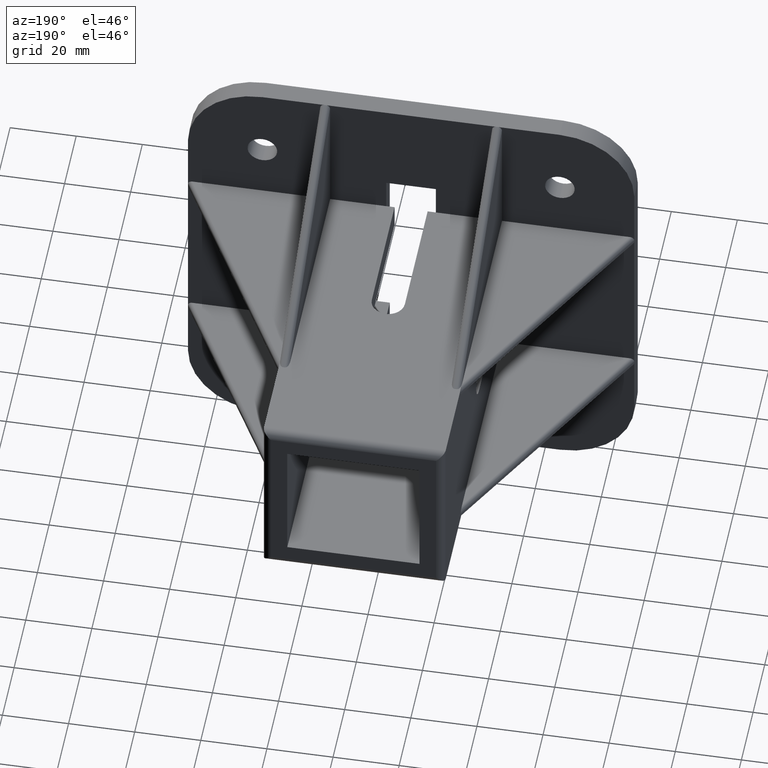
[diagram: clean part render]
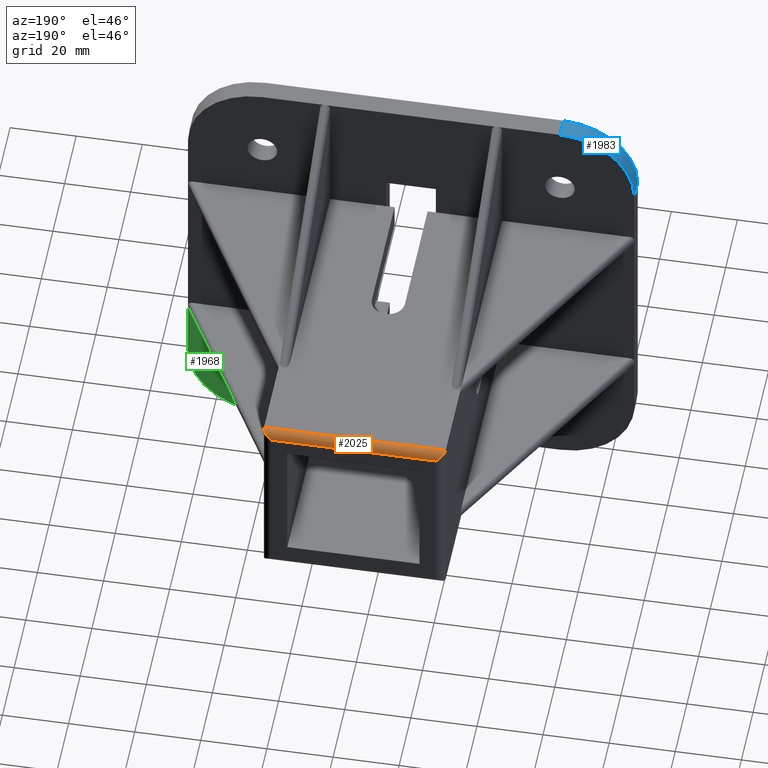
[diagram: same view with three faces highlighted in distinct colors, each labeled with its STEP entity id]
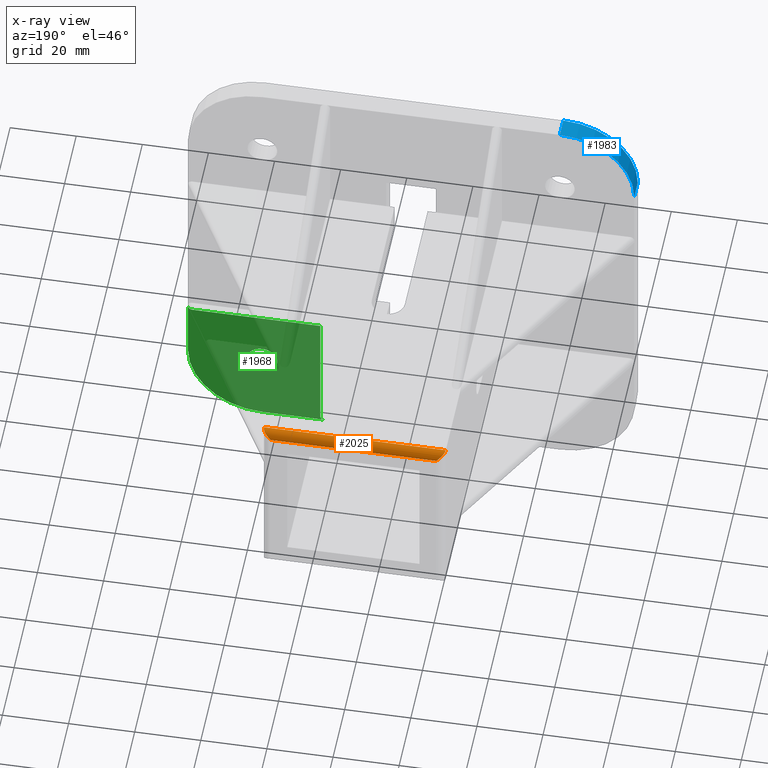
[diagram: x-ray of the same camera — body ghosted, the three highlighted faces saturated]
A machine part, auxiliary view with three faces highlighted in distinct colors.
The next image is the same camera in x-ray (body ghosted, the three faces saturated) — at least one of them is partly hidden behind the body in this view.
Their STEP definitions:

[orange] entity #2025 — the highlighted cylindrical surface (edge-blend (fillet) strip) has radius 2.5 mm, axis along (1, 0, 0).
#52=ELLIPSE('',#2190,3.53553390592985,2.49999999999807);
#53=ELLIPSE('',#2192,3.53553390593222,2.49999999999969);
#179=LINE('',#3112,#411);
#224=LINE('',#3222,#456);
#411=VECTOR('',#2471,55.);
#456=VECTOR('',#2574,50.);
#683=FACE_OUTER_BOUND('',#803,.T.);
#803=EDGE_LOOP('',(#1792,#1793,#1794,#1795));
#917=VERTEX_POINT('',#2921);
#992=VERTEX_POINT('',#3110);
#1027=VERTEX_POINT('',#3219);
#1028=VERTEX_POINT('',#3221);
#1202=EDGE_CURVE('',#992,#917,#179,.T.);
#1261=EDGE_CURVE('',#1027,#1028,#224,.T.);
#1306=EDGE_CURVE('',#1027,#917,#52,.T.);
#1307=EDGE_CURVE('',#992,#1028,#53,.T.);
#1792=ORIENTED_EDGE('',*,*,#1306,.T.);
#1793=ORIENTED_EDGE('',*,*,#1202,.F.);
#1794=ORIENTED_EDGE('',*,*,#1307,.T.);
#1795=ORIENTED_EDGE('',*,*,#1261,.F.);
#1943=CYLINDRICAL_SURFACE('',#2193,2.5);
#2025=ADVANCED_FACE('',(#683),#1943,.T.);
#2190=AXIS2_PLACEMENT_3D('',#3315,#2700,#2701);
#2192=AXIS2_PLACEMENT_3D('',#3317,#2704,#2705);
#2193=AXIS2_PLACEMENT_3D('',#3318,#2706,#2707);
#2471=DIRECTION('',(-1.,0.,0.));
#2574=DIRECTION('',(1.,0.,0.));
#2700=DIRECTION('center_axis',(0.70710678118655,-1.2802540303387E-14,0.707106781186545));
#2701=DIRECTION('ref_axis',(0.707106781186545,9.40506938673657E-13,-0.70710678118655));
#2704=DIRECTION('center_axis',(-0.707106781186548,0.,0.707106781186548));
#2705=DIRECTION('ref_axis',(0.707106781186547,-1.41874207443106E-13,0.707106781186547));
#2706=DIRECTION('center_axis',(1.,0.,0.));
#2707=DIRECTION('ref_axis',(0.,0.,-1.));
#2921=CARTESIAN_POINT('',(-27.5,102.5,27.5));
#3110=CARTESIAN_POINT('',(27.5,102.5,27.5));
#3112=CARTESIAN_POINT('',(27.5,102.5,27.5));
#3219=CARTESIAN_POINT('',(-25.,105.,25.));
#3221=CARTESIAN_POINT('',(25.,105.,25.));
#3222=CARTESIAN_POINT('',(27.5,105.,25.));
#3315=CARTESIAN_POINT('Origin',(-25.0000000000021,102.500000000002,25.000000000002));
#3317=CARTESIAN_POINT('Origin',(25.0000000000004,102.5,25.0000000000004));
#3318=CARTESIAN_POINT('Origin',(27.5,102.5,25.));

[blue] entity #1983 — the highlighted cylindrical surface (partial cylindrical patch) has radius 22.5 mm, axis along (0, -1, 0).
#200=LINE('',#3179,#432);
#206=LINE('',#3186,#438);
#432=VECTOR('',#2530,6.);
#438=VECTOR('',#2538,6.);
#641=FACE_OUTER_BOUND('',#760,.T.);
#760=EDGE_LOOP('',(#1616,#1617,#1618,#1619));
#841=CIRCLE('',#2070,22.5);
#851=CIRCLE('',#2122,22.5);
#866=VERTEX_POINT('',#2813);
#867=VERTEX_POINT('',#2815);
#996=VERTEX_POINT('',#3122);
#1000=VERTEX_POINT('',#3130);
#1050=EDGE_CURVE('',#866,#867,#841,.T.);
#1213=EDGE_CURVE('',#1000,#996,#851,.T.);
#1236=EDGE_CURVE('',#867,#1000,#200,.T.);
#1242=EDGE_CURVE('',#996,#866,#206,.T.);
#1616=ORIENTED_EDGE('',*,*,#1213,.F.);
#1617=ORIENTED_EDGE('',*,*,#1236,.F.);
#1618=ORIENTED_EDGE('',*,*,#1050,.F.);
#1619=ORIENTED_EDGE('',*,*,#1242,.F.);
#1921=CYLINDRICAL_SURFACE('',#2142,22.5);
#1983=ADVANCED_FACE('',(#641),#1921,.T.);
#2070=AXIS2_PLACEMENT_3D('',#2816,#2253,#2254);
#2122=AXIS2_PLACEMENT_3D('',#3132,#2488,#2489);
#2142=AXIS2_PLACEMENT_3D('',#3214,#2565,#2566);
#2253=DIRECTION('center_axis',(0.,-1.,0.));
#2254=DIRECTION('ref_axis',(0.,0.,-1.));
#2488=DIRECTION('center_axis',(0.,1.,0.));
#2489=DIRECTION('ref_axis',(9.25185853854297E-16,0.,-1.));
#2530=DIRECTION('',(0.,1.,0.));
#2538=DIRECTION('',(0.,-1.,0.));
#2565=DIRECTION('center_axis',(0.,-1.,0.));
#2566=DIRECTION('ref_axis',(0.,0.,-1.));
#2813=CARTESIAN_POINT('',(-45.,0.,67.5));
#2815=CARTESIAN_POINT('',(-67.5,0.,45.));
#2816=CARTESIAN_POINT('Origin',(-45.,0.,45.));
#3122=CARTESIAN_POINT('',(-45.,6.,67.5));
#3130=CARTESIAN_POINT('',(-67.5,6.,45.));
#3132=CARTESIAN_POINT('Origin',(-45.,6.,45.));
#3179=CARTESIAN_POINT('',(-67.5,6.,45.));
#3186=CARTESIAN_POINT('',(-45.,6.,67.5));
#3214=CARTESIAN_POINT('Origin',(-45.,6.,45.));

[green] entity #1968 — the highlighted planar face has unit normal (0, -1, 0).
#30=ELLIPSE('',#2106,1.37733517060514,1.19999999999934);
#31=ELLIPSE('',#2107,1.37733517060545,1.19999999999966);
#161=LINE('',#3062,#393);
#162=LINE('',#3066,#394);
#163=LINE('',#3069,#395);
#164=LINE('',#3073,#396);
#393=VECTOR('',#2429,38.6226648293941);
#394=VECTOR('',#2432,18.7);
#395=VECTOR('',#2435,38.6226648293941);
#396=VECTOR('',#2438,18.7);
#534=PLANE('',#2105);
#601=FACE_BOUND('',#742,.T.);
#626=FACE_OUTER_BOUND('',#741,.T.);
#741=EDGE_LOOP('',(#1492,#1493,#1494,#1495,#1496,#1497,#1498));
#742=EDGE_LOOP('',(#1499));
#836=CIRCLE('',#2063,4.5);
#849=CIRCLE('',#2108,22.5);
#860=VERTEX_POINT('',#2800);
#971=VERTEX_POINT('',#3058);
#972=VERTEX_POINT('',#3060);
#973=VERTEX_POINT('',#3064);
#974=VERTEX_POINT('',#3065);
#975=VERTEX_POINT('',#3067);
#976=VERTEX_POINT('',#3070);
#977=VERTEX_POINT('',#3072);
#1044=EDGE_CURVE('',#860,#860,#836,.T.);
#1176=EDGE_CURVE('',#972,#971,#161,.T.);
#1177=EDGE_CURVE('',#973,#974,#162,.T.);
#1178=EDGE_CURVE('',#974,#975,#30,.T.);
#1179=EDGE_CURVE('',#975,#971,#163,.T.);
#1180=EDGE_CURVE('',#972,#976,#31,.T.);
#1181=EDGE_CURVE('',#976,#977,#164,.T.);
#1182=EDGE_CURVE('',#977,#973,#849,.T.);
#1492=ORIENTED_EDGE('',*,*,#1177,.T.);
#1493=ORIENTED_EDGE('',*,*,#1178,.T.);
#1494=ORIENTED_EDGE('',*,*,#1179,.T.);
#1495=ORIENTED_EDGE('',*,*,#1176,.F.);
#1496=ORIENTED_EDGE('',*,*,#1180,.T.);
#1497=ORIENTED_EDGE('',*,*,#1181,.T.);
#1498=ORIENTED_EDGE('',*,*,#1182,.T.);
#1499=ORIENTED_EDGE('',*,*,#1044,.F.);
#1968=ADVANCED_FACE('',(#626,#601),#534,.F.);
#2063=AXIS2_PLACEMENT_3D('',#2801,#2238,#2239);
#2105=AXIS2_PLACEMENT_3D('',#3063,#2430,#2431);
#2106=AXIS2_PLACEMENT_3D('',#3068,#2433,#2434);
#2107=AXIS2_PLACEMENT_3D('',#3071,#2436,#2437);
#2108=AXIS2_PLACEMENT_3D('',#3074,#2439,#2440);
#2238=DIRECTION('center_axis',(0.,1.,0.));
#2239=DIRECTION('ref_axis',(0.,0.,1.));
#2429=DIRECTION('',(-1.,0.,0.));
#2430=DIRECTION('center_axis',(0.,-1.,0.));
#2431=DIRECTION('ref_axis',(0.,0.,-1.));
#2432=DIRECTION('',(-1.,0.,0.));
#2433=DIRECTION('center_axis',(8.93438494436334E-15,-1.,-7.78406168813624E-15));
#2434=DIRECTION('ref_axis',(-1.75292338625988E-12,7.78406168812058E-15,
-1.));
#2435=DIRECTION('',(0.,0.,1.));
#2436=DIRECTION('center_axis',(5.46365594862826E-15,-1.,-1.82984873485526E-14));
#2437=DIRECTION('ref_axis',(1.,5.46365594861041E-15,9.75730501606691E-13));
#2438=DIRECTION('',(0.,0.,-1.));
#2439=DIRECTION('center_axis',(0.,1.,0.));
#2440=DIRECTION('ref_axis',(-9.25185853854297E-16,0.,-1.));
#2800=CARTESIAN_POINT('',(45.,6.,-49.5));
#2801=CARTESIAN_POINT('Origin',(45.,6.,-45.));
#3058=CARTESIAN_POINT('',(27.5,6.,-27.5));
#3060=CARTESIAN_POINT('',(66.1226648293941,6.,-27.5));
#3062=CARTESIAN_POINT('',(27.5,6.,-27.5));
#3063=CARTESIAN_POINT('Origin',(-67.5,6.,-67.5));
#3064=CARTESIAN_POINT('',(45.,6.,-67.5));
#3065=CARTESIAN_POINT('',(26.3,6.,-67.5));
#3066=CARTESIAN_POINT('',(-67.5,6.,-67.5));
#3067=CARTESIAN_POINT('',(27.5,6.,-66.1226648293941));
#3068=CARTESIAN_POINT('Origin',(26.3000000000007,5.99999999999999,-66.1226648293949));
#3069=CARTESIAN_POINT('',(27.5,6.,-67.5));
#3070=CARTESIAN_POINT('',(67.5,5.99999999999999,-26.3));
#3071=CARTESIAN_POINT('Origin',(66.1226648293946,5.99999999999998,-26.3000000000003));
#3072=CARTESIAN_POINT('',(67.5,6.,-45.));
#3073=CARTESIAN_POINT('',(67.5,6.,67.5));
#3074=CARTESIAN_POINT('Origin',(45.,6.,-45.));